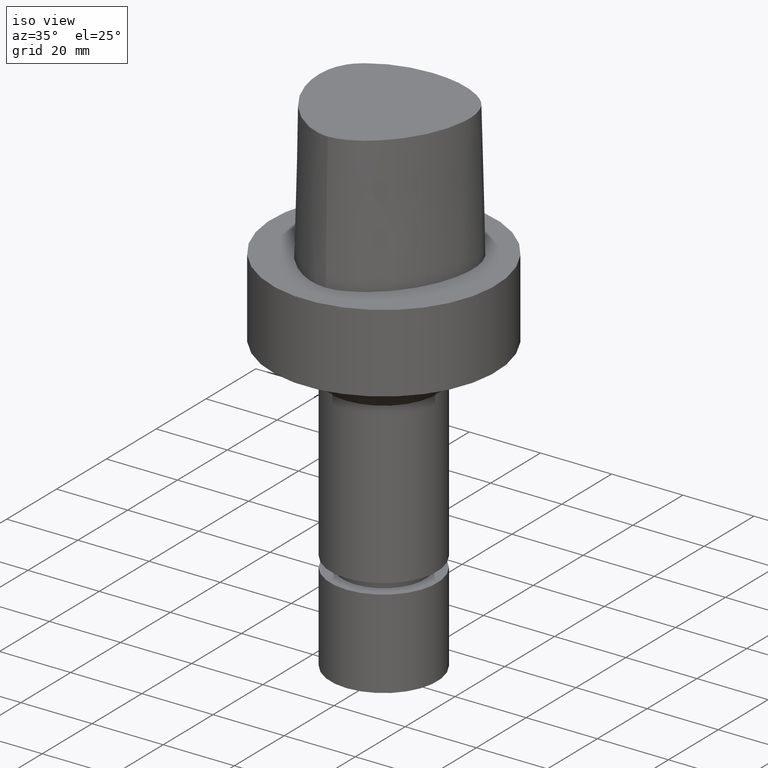
[diagram: clean part render]
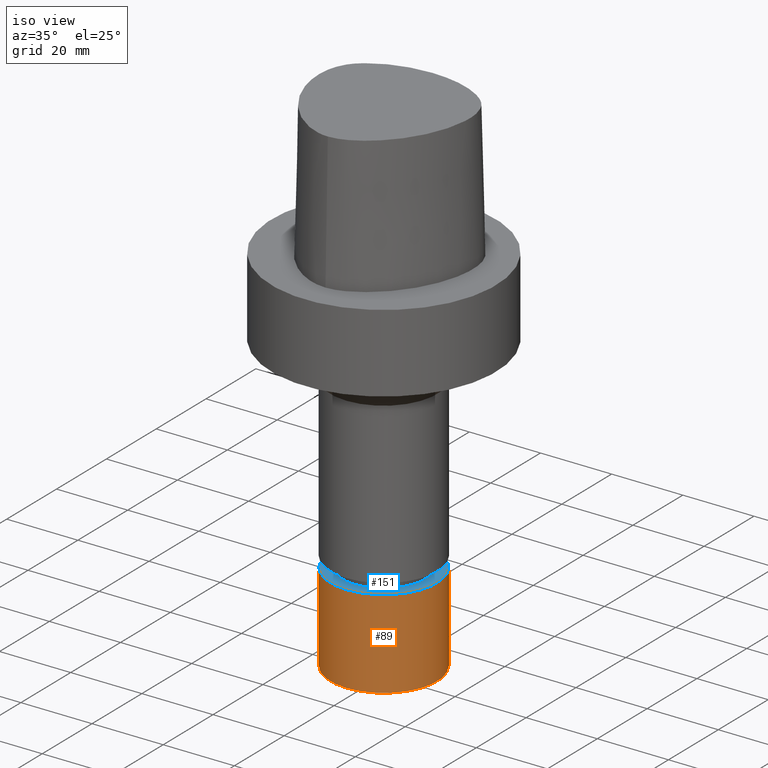
[diagram: same view with the hole feature highlighted: cylindrical wall and planar end face, labeled with their STEP entity ids]
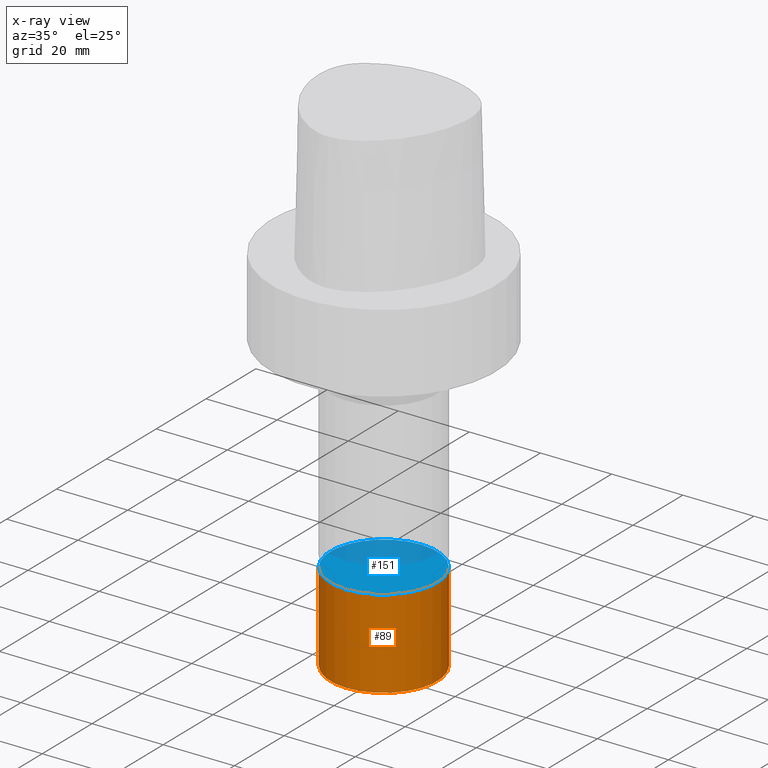
[diagram: x-ray of the same camera — body ghosted, the hole faces saturated]
A machine part, iso view. The highlighted faces form one hole feature of diameter 30 mm: the cylindrical wall (entity #89, orange) and its adjacent planar end face (entity #151, blue) — they share a circular edge in the B-rep.
The next image is the same camera in x-ray (body ghosted, the hole faces saturated) — the bore reads through the body.
Wall:
#75=EDGE_CURVE('Unnamed[1]',#195,#195,#196,.T.);
#89=ADVANCED_FACE('Unnamed[1]',(#216,#217),#218,.T.);
#118=EDGE_CURVE('Unnamed[1]',#259,#259,#260,.T.);
#195=VERTEX_POINT('',#354);
#196=CIRCLE('',#355,15.0);
#216=FACE_BOUND('',#463,.T.);
#217=FACE_BOUND('',#464,.T.);
#218=CYLINDRICAL_SURFACE('',#465,15.0);
#259=VERTEX_POINT('',#537);
#260=CIRCLE('',#538,15.0000000000001);
#354=CARTESIAN_POINT('',(6.4293956955236E-015,15.0,-105.0));
#355=AXIS2_PLACEMENT_3D('',#740,#741,#742);
#463=EDGE_LOOP('',(#762));
#464=EDGE_LOOP('',(#763));
#465=AXIS2_PLACEMENT_3D('',#764,#765,#766);
#537=CARTESIAN_POINT('',(4.89858719658941E-015,15.0000000000001,-80.0));
#538=AXIS2_PLACEMENT_3D('',#802,#803,#804);
#740=CARTESIAN_POINT('',(6.4293956955236E-015,1.28587913910472E-014,-105.0));
#741=DIRECTION('',(6.12323399573677E-017,1.22464679914735E-016,-1.0));
#742=DIRECTION('',(-1.23259516440783E-032,1.0,1.22464679914735E-016));
#762=ORIENTED_EDGE('',*,*,#75,.F.);
#763=ORIENTED_EDGE('',*,*,#118,.T.);
#764=CARTESIAN_POINT('',(5.66399144605651E-015,1.1327982892113E-014,-92.5));
#765=DIRECTION('',(6.12323399573677E-017,1.22464679914735E-016,-1.0));
#766=DIRECTION('',(-1.23259516440783E-032,1.0,1.22464679914735E-016));
#802=CARTESIAN_POINT('',(4.89858719658941E-015,9.79717439317883E-015,-80.0));
#803=DIRECTION('',(6.12323399573677E-017,1.22464679914735E-016,-1.0));
#804=DIRECTION('',(-1.23259516440783E-032,1.0,1.22464679914735E-016));
End face:
#118=EDGE_CURVE('Unnamed[1]',#259,#259,#260,.T.);
#151=ADVANCED_FACE('Unnamed[1]',(#307),#308,.T.);
#259=VERTEX_POINT('',#537);
#260=CIRCLE('',#538,15.0000000000001);
#307=FACE_OUTER_BOUND('',#611,.T.);
#308=PLANE('',#612);
#537=CARTESIAN_POINT('',(4.89858719658941E-015,15.0000000000001,-80.0));
#538=AXIS2_PLACEMENT_3D('',#802,#803,#804);
#611=EDGE_LOOP('',(#856));
#612=AXIS2_PLACEMENT_3D('',#857,#858,#859);
#802=CARTESIAN_POINT('',(4.89858719658941E-015,9.79717439317883E-015,-80.0));
#803=DIRECTION('',(6.12323399573677E-017,1.22464679914735E-016,-1.0));
#804=DIRECTION('',(-1.23259516440783E-032,1.0,1.22464679914735E-016));
#856=ORIENTED_EDGE('',*,*,#118,.F.);
#857=CARTESIAN_POINT('',(4.89858719658941E-015,7.50000000000004,-80.0));
#858=DIRECTION('',(-6.12323399573677E-017,-1.22464679914735E-016,1.0));
#859=DIRECTION('',(1.23259516440783E-032,-1.0,-1.22464679914735E-016));